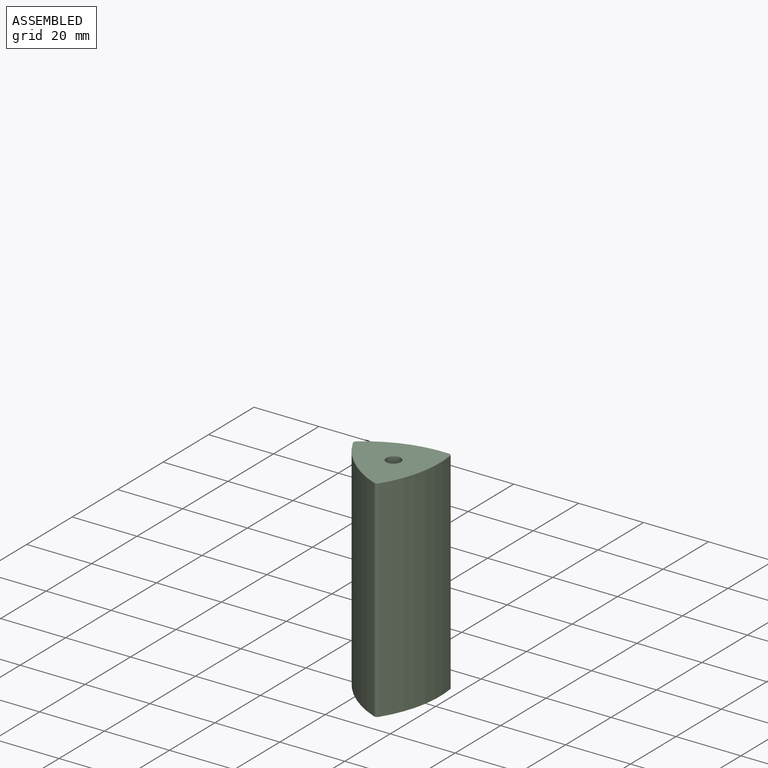
[diagram: assembled view]
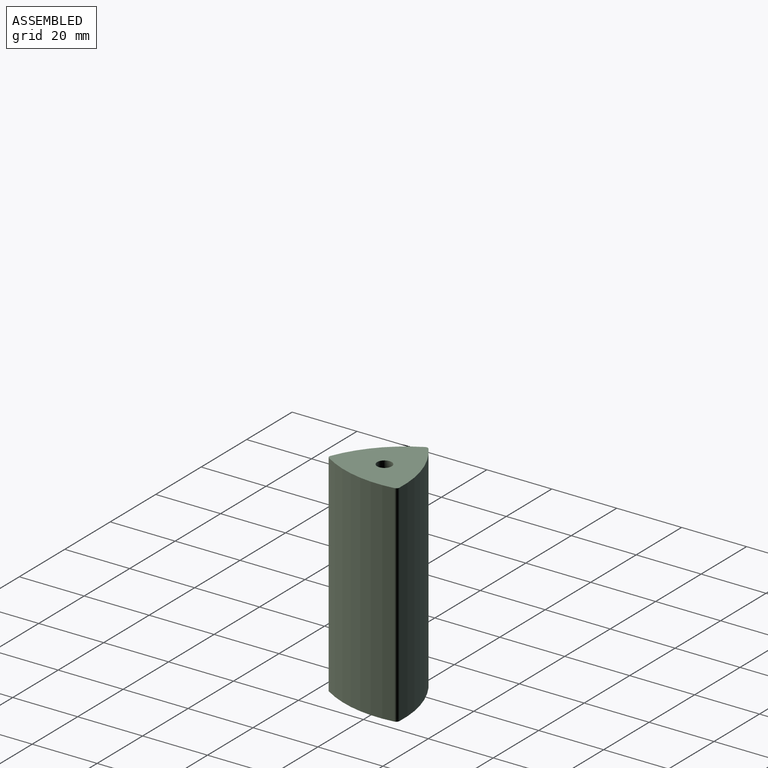
[diagram: assembled view, second angle]
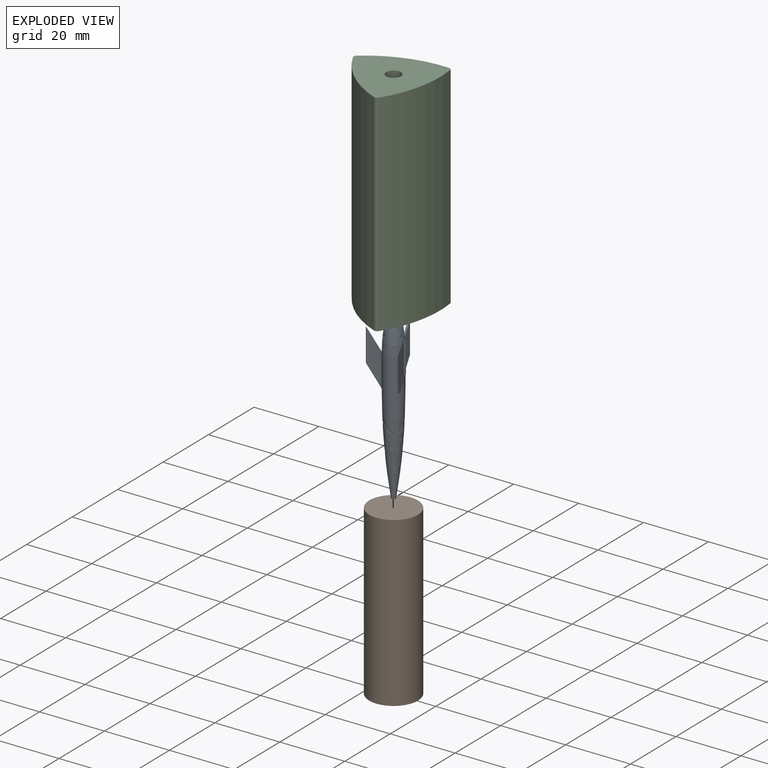
[diagram: exploded view]
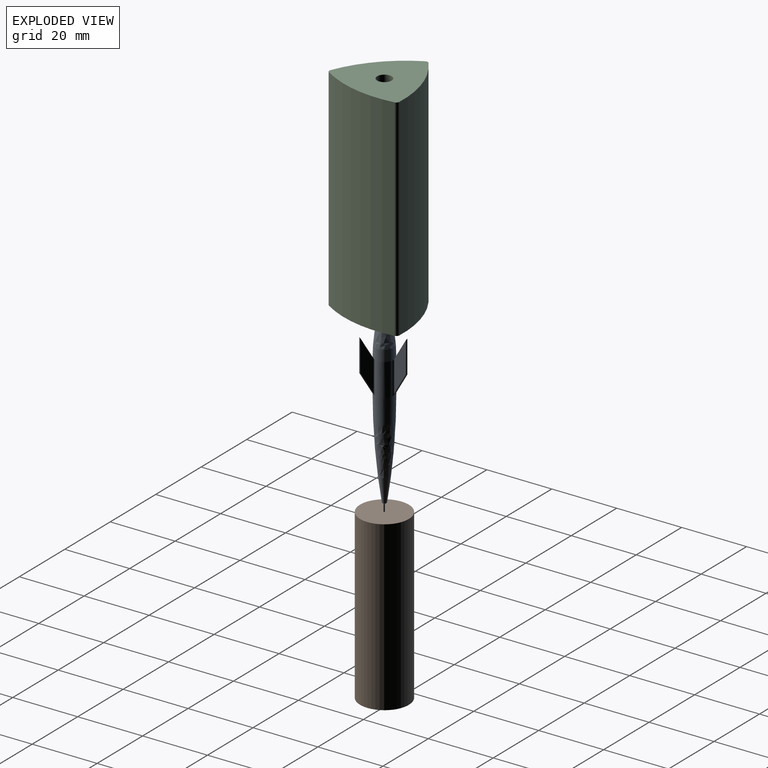
[diagram: exploded view, second angle]
ASSEMBLY  parts=3 mates=4
PART A: 40 faces, bbox 13.5x11.9x50.6 mm
  f0: cylinder r=3mm len=10mm, axis (0,0,1), area 49mm2, adj f3,f4,f13,f19,f35,f36
  f1: cylinder r=3mm len=10mm, axis (0,0,1), area 49mm2, adj f3,f4,f10,f14,f31,f32
  f2: cylinder r=3mm len=10mm, axis (0,0,1), area 49mm2, adj f3,f4,f11,f18,f28,f39
  f3: revolved ~10x6mm, area 168.4mm2, adj f0,f1,f2,f6,f23,f25,f27
  f4: revolved ~30.58x6mm, area 427.1mm2, adj f0,f1,f2,f5,f22,f24,f26,f28
  f5: plane 1.32x1.32mm, normal (0,0,1), area 1.4mm2, adj f4
  f6: plane 3.98x3.98mm, normal (0,0,-1), area 12.4mm2, adj f3
  f7: plane 15.19x3.36mm, normal (1,0,0), area 31mm2, adj f8,f11,f27,f30
  f8: cylinder r=0.3mm len=9.92mm, axis (0,0,-1), area 9.2mm2, adj f7,f9,f27,f29
  f9: plane 15.19x3.36mm, normal (-1,0,0), area 31mm2, adj f8,f10,f27,f30
  f10: cylinder r=0.5mm len=10.65mm, axis (0,0,-1), area 6.5mm2, adj f1,f9,f27,f31
  f11: cylinder r=0.5mm len=10.65mm, axis (0,0,-1), area 6.5mm2, adj f2,f7,f27,f28
  f12: plane 15.19x2.92mm, normal (0.5,-0.87,0), area 31mm2, adj f13,f16,f25,f34
  f13: cylinder r=0.5mm len=10.65mm, axis (0,0,-1), area 6.5mm2, adj f0,f12,f25,f35
  f14: cylinder r=0.5mm len=10.65mm, axis (0,0,-1), area 6.5mm2, adj f1,f15,f25,f32
  f15: plane 15.19x2.92mm, normal (-0.5,0.87,0), area 31mm2, adj f14,f16,f25,f34
  f16: cylinder r=0.3mm len=9.92mm, axis (0,0,-1), area 9.2mm2, adj f12,f15,f25,f33
  f17: plane 15.19x2.92mm, normal (0.5,0.87,0), area 31mm2, adj f18,f21,f23,f38
  f18: cylinder r=0.5mm len=10.65mm, axis (0,0,-1), area 6.5mm2, adj f2,f17,f23,f39
  f19: cylinder r=0.5mm len=10.65mm, axis (0,0,-1), area 6.5mm2, adj f0,f20,f23,f36
  f20: plane 15.19x2.92mm, normal (-0.5,-0.87,0), area 31mm2, adj f19,f21,f23,f38
  f21: cylinder r=0.3mm len=9.92mm, axis (0,0,-1), area 9.2mm2, adj f17,f20,f23,f37
  f22: cone r=3mm half-angle=30deg, axis (0,0,-1), area 0.6mm2, adj f4,f36,f39
  f23: cone r=7mm half-angle=30deg, axis (0,0,-1), area 5.4mm2, adj f3,f17,f18,f19,f20,f21
  f24: cone r=3mm half-angle=30deg, axis (0,0,-1), area 0.6mm2, adj f4,f32,f35
  f25: cone r=7mm half-angle=30deg, axis (0,0,-1), area 5.4mm2, adj f3,f12,f13,f14,f15,f16
  f26: cone r=3mm half-angle=30deg, axis (0,0,-1), area 0.6mm2, adj f4,f28,f31
  f27: cone r=7mm half-angle=30deg, axis (0,0,-1), area 5.4mm2, adj f3,f7,f8,f9,f10,f11
  f28: bspline ~1.84x1.08mm, area 0.5mm2, adj f2,f4,f11,f26,f30
  f29: sphere r=0.3mm, area 0.1mm2, adj f8,f30
  f30: cylinder r=0.3mm len=5.85mm, axis (0,-0.5,0.87), area 6.2mm2, adj f7,f9,f28,f29,f31
  f31: bspline ~1.84x1.08mm, area 0.5mm2, adj f1,f4,f10,f26,f30
  f32: bspline ~1.84x1.36mm, area 0.5mm2, adj f1,f4,f14,f24,f34
  f33: sphere r=0.3mm, area 0.1mm2, adj f16,f34
  f34: cylinder r=0.3mm len=5.85mm, axis (0.43,0.25,0.87), area 6.2mm2, adj f12,f15,f32,f33,f35
  f35: bspline ~1.91x1.43mm, area 0.5mm2, adj f0,f4,f13,f24,f34
  f36: bspline ~1.91x1.43mm, area 0.5mm2, adj f0,f4,f19,f22,f38
  f37: sphere r=0.3mm, area 0.1mm2, adj f21,f38
  f38: cylinder r=0.3mm len=5.85mm, axis (-0.43,0.25,0.87), area 6.2mm2, adj f17,f20,f36,f37,f39
  f39: bspline ~1.91x1.36mm, area 0.5mm2, adj f2,f4,f18,f22,f38
PART B: 22 faces, bbox 15x15x51.8 mm
  f0: plane 15x15mm, normal (0,0,1), area 141.1mm2, adj f1,f3,f4,f5,f6,f7,f8,f9
  f1: cylinder r=7.5mm len=51.75mm, axis (0,0,-1), area 2438.7mm2, adj f0,f2
  f2: plane 15x15mm, normal (0,0,-1), area 176.7mm2, adj f1
  f3: plane 50.75x3.29mm, normal (1,0,0), area 167.1mm2, adj f0,f14,f15,f17
  f4: cylinder r=3mm len=50.75mm, axis (0,0,1), area 248.7mm2, adj f0,f15,f17,f18
  f5: plane 50.75x2.85mm, normal (0.5,-0.87,0), area 167.1mm2, adj f0,f6,f15,f18
  f6: cylinder r=0.3mm len=50.75mm, axis (0,0,1), area 47.8mm2, adj f0,f5,f7,f15
  f7: plane 50.75x2.85mm, normal (-0.5,0.87,0), area 167.1mm2, adj f0,f6,f15,f19
  f8: cylinder r=3mm len=50.75mm, axis (0,0,1), area 248.7mm2, adj f0,f15,f19,f20
  f9: plane 50.75x2.85mm, normal (0.5,0.87,0), area 167.1mm2, adj f0,f10,f15,f20
  f10: cylinder r=0.3mm len=50.75mm, axis (0,0,1), area 47.8mm2, adj f0,f9,f11,f15
  f11: plane 50.75x2.85mm, normal (-0.5,-0.87,0), area 167.1mm2, adj f0,f10,f15,f21
  f12: cylinder r=3mm len=50.75mm, axis (0,0,1), area 248.7mm2, adj f0,f15,f16,f21
  f13: plane 50.75x3.29mm, normal (-1,0,0), area 167.1mm2, adj f0,f14,f15,f16
  f14: cylinder r=0.3mm len=50.75mm, axis (0,0,1), area 47.8mm2, adj f0,f3,f13,f15
  f15: plane 12.2x10.65mm, normal (0,0,1), area 35.6mm2, adj f3,f4,f5,f6,f7,f8,f9,f10
  f16: cylinder r=0.5mm len=50.75mm, axis (0,0,1), area 34mm2, adj f0,f12,f13,f15
  f17: cylinder r=0.5mm len=50.75mm, axis (0,0,1), area 34mm2, adj f0,f3,f4,f15
  f18: cylinder r=0.5mm len=50.75mm, axis (0,0,1), area 34mm2, adj f0,f4,f5,f15
  f19: cylinder r=0.5mm len=50.75mm, axis (0,0,1), area 34mm2, adj f0,f7,f8,f15
  f20: cylinder r=0.5mm len=50.75mm, axis (0,0,1), area 34mm2, adj f0,f8,f9,f15
  f21: cylinder r=0.5mm len=50.75mm, axis (0,0,1), area 34mm2, adj f0,f11,f12,f15
PART C: 18 faces, bbox 25.8x24.7x65 mm
  f0: cylinder r=1mm len=65mm, axis (0,0,-1), area 89.7mm2, adj f1,f5,f6,f7
  f1: cylinder r=35mm len=65mm, axis (0,0,-1), area 1623.8mm2, adj f0,f2,f6,f7
  f2: cylinder r=1mm len=65mm, axis (0,0,-1), area 89.7mm2, adj f1,f3,f6,f7
  f3: cylinder r=35mm len=65mm, axis (0,0,-1), area 1623.8mm2, adj f2,f4,f6,f7
  f4: cylinder r=1mm len=65mm, axis (0,0,-1), area 89.7mm2, adj f3,f5,f6,f7
  f5: cylinder r=35mm len=65mm, axis (0,0,-1), area 1623.8mm2, adj f0,f4,f6,f7
  f6: plane 25.76x24.72mm, normal (0,0,1), area 246mm2, adj f0,f1,f2,f3,f4,f5,f8
  f7: plane 25.76x24.72mm, normal (0,0,-1), area 406.8mm2, adj f0,f1,f2,f3,f4,f5,f12
  f8: cylinder r=7.5mm len=51.75mm, axis (0,0,1), area 2438.7mm2, adj f6,f9
  f9: plane 15x15mm, normal (0,0,1), area 22.8mm2, adj f8,f16
  f10: plane 5x5mm, normal (0,0,1), area 7.1mm2, adj f14,f15
  f11: cylinder r=7.5mm len=15mm, axis (0,0,1), area 223.8mm2, adj f15,f17
  f12: cylinder r=2.25mm len=4.5mm, axis (0,0,-1), area 35.3mm2, adj f7,f13
  f13: plane 4.5x4.5mm, normal (0,0,-1), area 3.3mm2, adj f12,f14
  f14: cylinder r=2mm len=4mm, axis (0,0,-1), area 6.3mm2, adj f10,f13
  f15: torus R=2.5mm, axis (0,0,1), area 280.4mm2, adj f10,f11
  f16: torus R=7.25mm, axis (0,0,1), area 17.5mm2, adj f9,f17
  f17: torus R=7.25mm, axis (0,0,1), area 18.3mm2, adj f11,f16
PLACE A rot(axis=(-0.87,0.5,0),180deg) t=(-11.75,38.27,55.84)mm
PLACE B rot(axis=(-0.87,0.5,0),180deg) t=(-11.75,38.27,56.84)mm
PLACE C rot(axis=(-0.63,0.78,0),180deg) t=(-11.75,38.27,70.09)mm
MATE planar A.f0 <-> B.f12  axis (0,0,1) through (-11.75,38.27,55.84)mm
MATE cylindrical C.f8 <-> B.f1  axis (0,0,-1) through (-11.75,38.27,5.09)mm
MATE cylindrical A.f0 <-> B.f12  axis (0,0,-1) through (-11.75,38.27,40.84)mm
MATE planar C.f12 <-> B.f4  axis (0,0,-1) through (-11.75,38.27,56.84)mm
